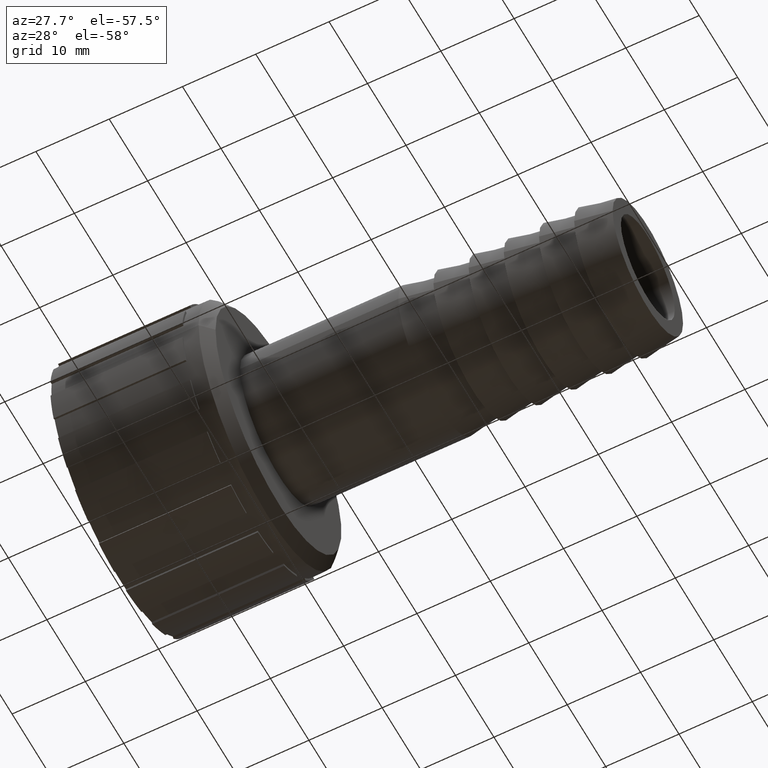
[diagram: clean part render]
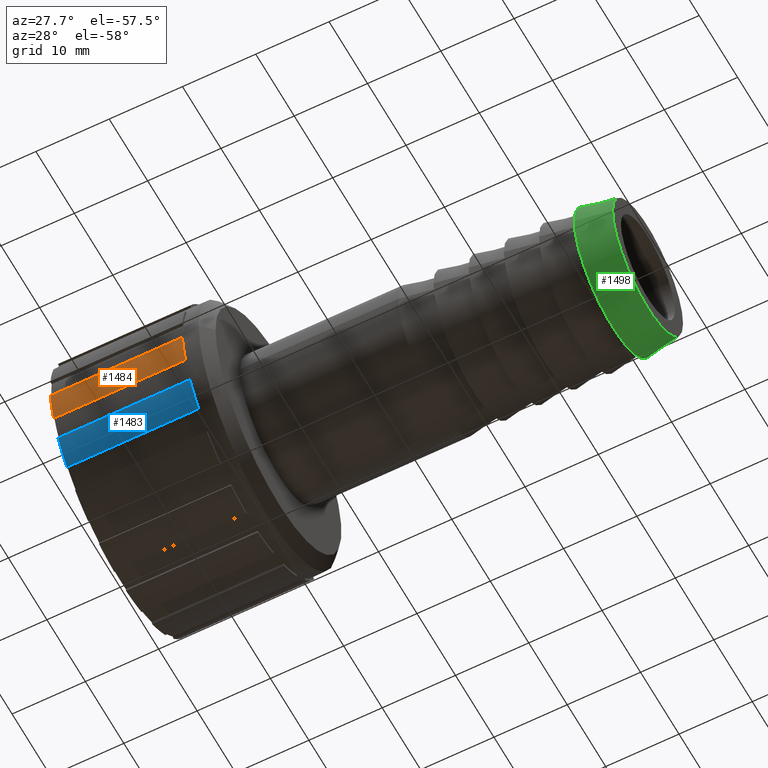
[diagram: same view with three faces highlighted in distinct colors, each labeled with its STEP entity id]
A machine part, auxiliary view with three faces highlighted in distinct colors.
Their STEP definitions:

[orange] entity #1484 — the highlighted cylindrical surface (partial cylindrical patch) has radius 18.1746 mm, axis along (-1, 0, 0).
#33=CYLINDRICAL_SURFACE('',#1635,18.1746);
#87=CIRCLE('',#1568,18.1746);
#117=CIRCLE('',#1610,18.1746);
#203=FACE_OUTER_BOUND('',#288,.T.);
#288=EDGE_LOOP('',(#1240,#1241,#1242,#1243));
#362=LINE('',#2212,#490);
#368=LINE('',#2224,#496);
#490=VECTOR('',#1726,18.);
#496=VECTOR('',#1734,18.);
#617=VERTEX_POINT('',#2208);
#619=VERTEX_POINT('',#2211);
#622=VERTEX_POINT('',#2218);
#624=VERTEX_POINT('',#2222);
#765=EDGE_CURVE('',#619,#617,#362,.T.);
#771=EDGE_CURVE('',#622,#624,#368,.T.);
#883=EDGE_CURVE('',#622,#617,#87,.T.);
#914=EDGE_CURVE('',#624,#619,#117,.T.);
#1240=ORIENTED_EDGE('',*,*,#765,.T.);
#1241=ORIENTED_EDGE('',*,*,#883,.F.);
#1242=ORIENTED_EDGE('',*,*,#771,.T.);
#1243=ORIENTED_EDGE('',*,*,#914,.T.);
#1484=ADVANCED_FACE('',(#203),#33,.T.);
#1568=AXIS2_PLACEMENT_3D('',#2446,#1915,#1916);
#1610=AXIS2_PLACEMENT_3D('',#2492,#2000,#2001);
#1635=AXIS2_PLACEMENT_3D('',#2521,#2052,#2053);
#1726=DIRECTION('',(-1.,0.,0.));
#1734=DIRECTION('',(1.,0.,0.));
#1915=DIRECTION('center_axis',(-1.,0.,0.));
#1916=DIRECTION('ref_axis',(0.,0.,1.));
#2000=DIRECTION('center_axis',(-1.,0.,0.));
#2001=DIRECTION('ref_axis',(0.,0.,1.));
#2052=DIRECTION('center_axis',(-1.,0.,0.));
#2053=DIRECTION('ref_axis',(0.,-1.,0.));
#2208=CARTESIAN_POINT('',(0.,-18.1113838084642,-1.51455000000002));
#2211=CARTESIAN_POINT('',(18.,-18.1113838084642,-1.51455000000002));
#2212=CARTESIAN_POINT('',(9.,-18.1113838084642,-1.51455000000002));
#2218=CARTESIAN_POINT('',(0.,-17.312329998585,-5.53166477473964));
#2222=CARTESIAN_POINT('',(18.,-17.3123299985849,-5.53166477473964));
#2224=CARTESIAN_POINT('',(9.,-17.312329998585,-5.53166477473964));
#2446=CARTESIAN_POINT('Origin',(0.,0.,0.));
#2492=CARTESIAN_POINT('Origin',(18.,0.,0.));
#2521=CARTESIAN_POINT('Origin',(9.,0.,0.));

[blue] entity #1483 — the highlighted cylindrical surface (partial cylindrical patch) has radius 18.1746 mm, axis along (-1, 0, 0).
#32=CYLINDRICAL_SURFACE('',#1634,18.1746);
#85=CIRCLE('',#1566,18.1746);
#115=CIRCLE('',#1607,18.1746);
#202=FACE_OUTER_BOUND('',#287,.T.);
#287=EDGE_LOOP('',(#1236,#1237,#1238,#1239));
#370=LINE('',#2230,#498);
#376=LINE('',#2242,#504);
#498=VECTOR('',#1738,18.);
#504=VECTOR('',#1746,18.);
#625=VERTEX_POINT('',#2226);
#627=VERTEX_POINT('',#2229);
#630=VERTEX_POINT('',#2236);
#632=VERTEX_POINT('',#2240);
#773=EDGE_CURVE('',#627,#625,#370,.T.);
#779=EDGE_CURVE('',#630,#632,#376,.T.);
#881=EDGE_CURVE('',#630,#625,#85,.T.);
#912=EDGE_CURVE('',#632,#627,#115,.T.);
#1236=ORIENTED_EDGE('',*,*,#773,.T.);
#1237=ORIENTED_EDGE('',*,*,#881,.F.);
#1238=ORIENTED_EDGE('',*,*,#779,.T.);
#1239=ORIENTED_EDGE('',*,*,#912,.T.);
#1483=ADVANCED_FACE('',(#202),#32,.T.);
#1566=AXIS2_PLACEMENT_3D('',#2444,#1911,#1912);
#1607=AXIS2_PLACEMENT_3D('',#2489,#1994,#1995);
#1634=AXIS2_PLACEMENT_3D('',#2520,#2050,#2051);
#1738=DIRECTION('',(-1.,0.,0.));
#1746=DIRECTION('',(1.,0.,0.));
#1911=DIRECTION('center_axis',(-1.,0.,0.));
#1912=DIRECTION('ref_axis',(0.,0.,1.));
#1994=DIRECTION('center_axis',(-1.,0.,0.));
#1995=DIRECTION('ref_axis',(0.,0.,1.));
#2050=DIRECTION('center_axis',(-1.,0.,0.));
#2051=DIRECTION('ref_axis',(0.,-1.,0.));
#2226=CARTESIAN_POINT('',(0.,-16.1531436136079,-8.33018826666958));
#2229=CARTESIAN_POINT('',(18.,-16.1531436136079,-8.33018826666958));
#2230=CARTESIAN_POINT('',(9.,-16.1531436136079,-8.33018826666958));
#2236=CARTESIAN_POINT('',(0.,-13.8776308830834,-11.7357337321912));
#2240=CARTESIAN_POINT('',(18.,-13.8776308830834,-11.7357337321912));
#2242=CARTESIAN_POINT('',(9.,-13.8776308830834,-11.7357337321912));
#2444=CARTESIAN_POINT('Origin',(0.,0.,0.));
#2489=CARTESIAN_POINT('Origin',(18.,0.,0.));
#2520=CARTESIAN_POINT('Origin',(9.,0.,0.));

[green] entity #1498 — the highlighted conical surface has half-angle 10 deg.
#16=CONICAL_SURFACE('',#1656,9.57681524629968,9.99999999999998);
#50=FACE_BOUND('',#310,.T.);
#133=CIRCLE('',#1655,9.15363049259937);
#134=CIRCLE('',#1657,10.);
#217=FACE_OUTER_BOUND('',#309,.T.);
#309=EDGE_LOOP('',(#1345));
#310=EDGE_LOOP('',(#1346));
#724=VERTEX_POINT('',#2550);
#725=VERTEX_POINT('',#2553);
#935=EDGE_CURVE('',#724,#724,#133,.T.);
#936=EDGE_CURVE('',#725,#725,#134,.T.);
#1345=ORIENTED_EDGE('',*,*,#935,.T.);
#1346=ORIENTED_EDGE('',*,*,#936,.F.);
#1498=ADVANCED_FACE('',(#217,#50),#16,.T.);
#1655=AXIS2_PLACEMENT_3D('',#2551,#2095,#2096);
#1656=AXIS2_PLACEMENT_3D('',#2552,#2097,#2098);
#1657=AXIS2_PLACEMENT_3D('',#2554,#2099,#2100);
#2095=DIRECTION('center_axis',(-1.,0.,0.));
#2096=DIRECTION('ref_axis',(0.,0.,1.));
#2097=DIRECTION('center_axis',(-1.,0.,0.));
#2098=DIRECTION('ref_axis',(0.,-1.,0.));
#2099=DIRECTION('center_axis',(-1.,0.,0.));
#2100=DIRECTION('ref_axis',(0.,0.,1.));
#2550=CARTESIAN_POINT('',(72.,-9.15363049259937,0.));
#2551=CARTESIAN_POINT('Origin',(72.,0.,0.));
#2552=CARTESIAN_POINT('Origin',(69.6,0.,0.));
#2553=CARTESIAN_POINT('',(67.2,-10.,0.));
#2554=CARTESIAN_POINT('Origin',(67.2,0.,0.));